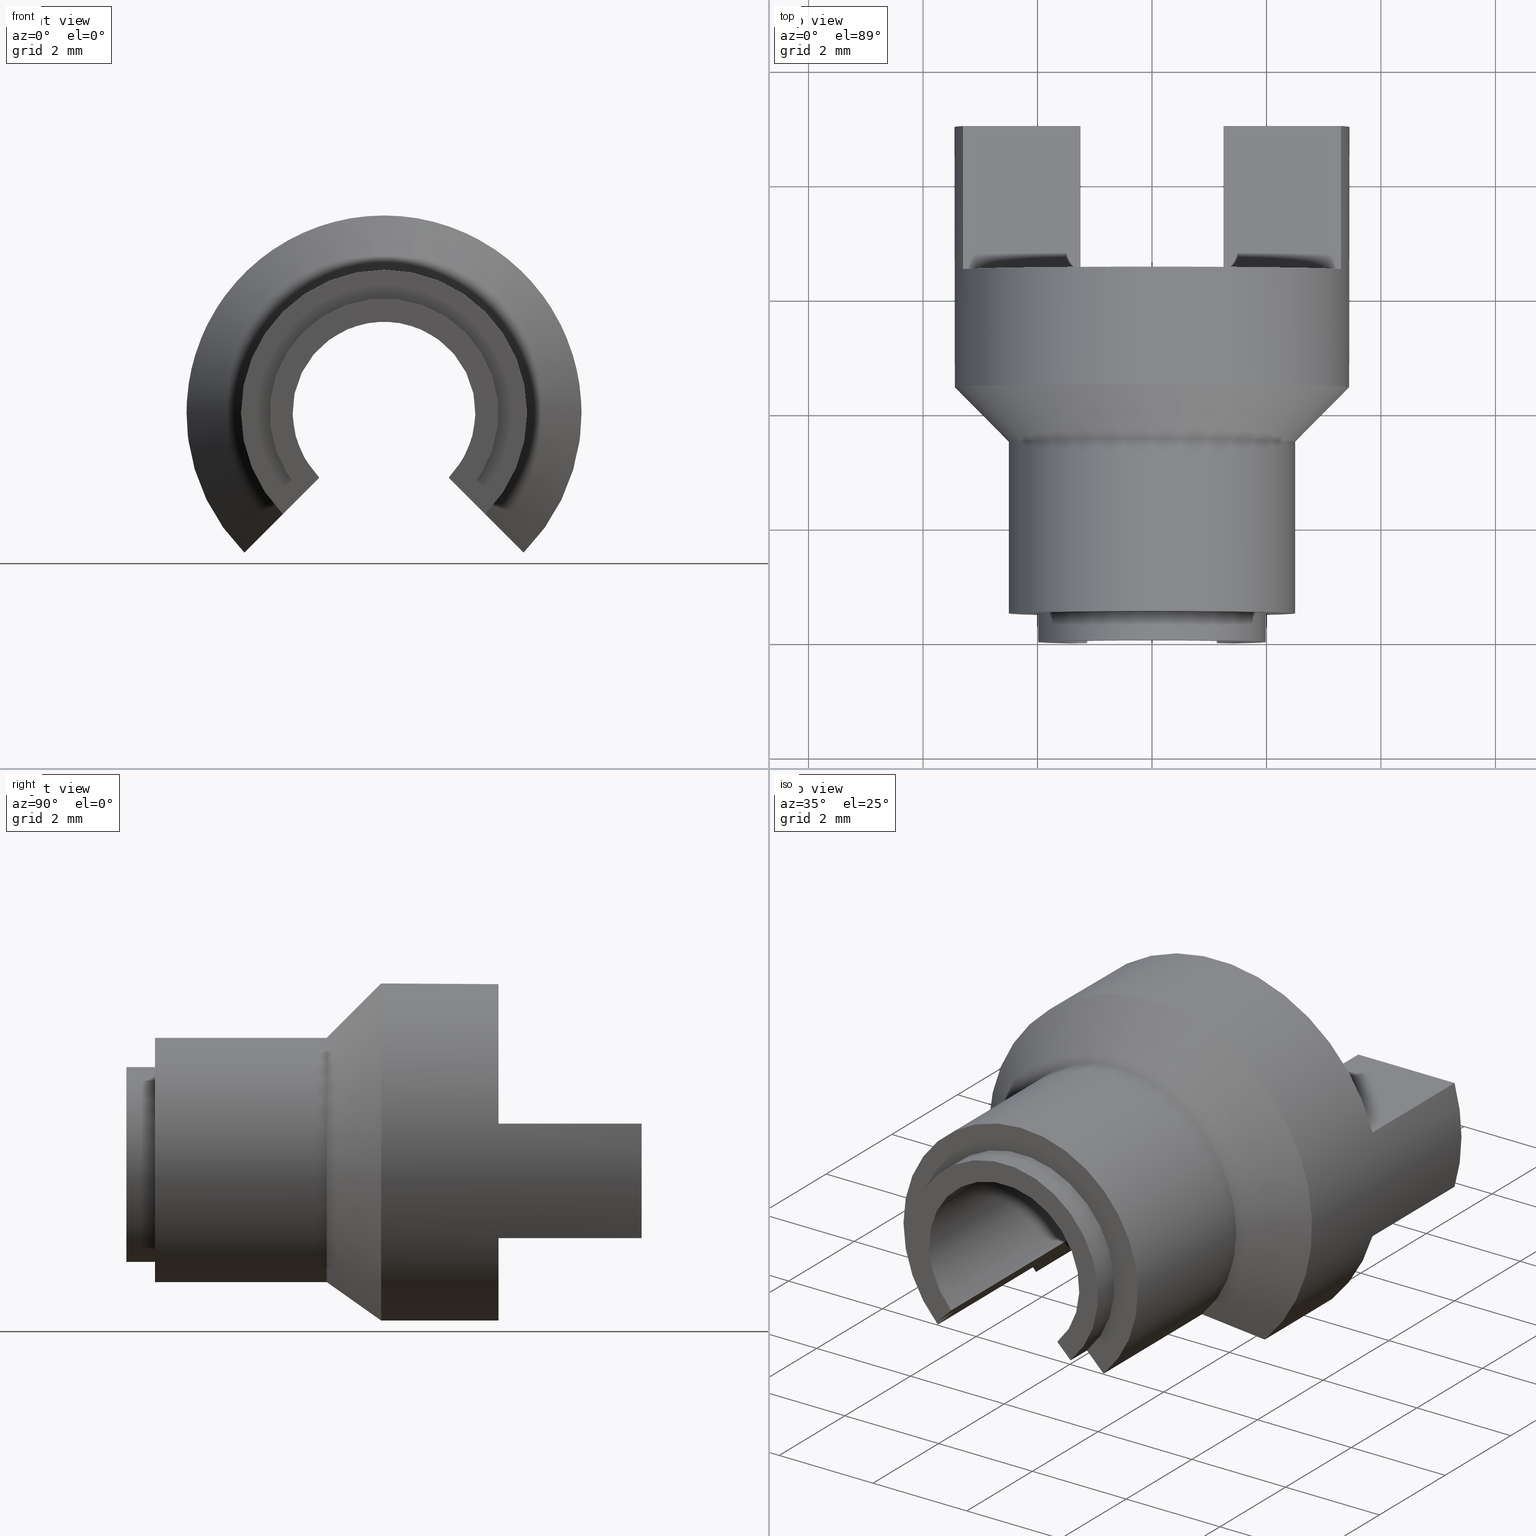
[diagram: canonical four-view strip — front | top / right | iso, engineering-drawing reading convention]
A machine part, canonical four-view strip (front | top / right | iso — engineering-drawing reading convention). The complete STEP part file that produces these views, byte-faithful:
ISO-10303-21;
HEADER;
FILE_DESCRIPTION( ( 'STEP AP214' ), '1' );
FILE_NAME( 'L:/05_�J��/30_���a���^�/�ʉ��x�Z���T/G_�݌v�Ǘ�/���}�ʊǗ�/Assy�}/HP�p/AFXS-STF01.0-M5.step', '2022-06-28T09:02:34', ( ' ' ), ( ' ' ), 'XStep 1.0', ' ', ' ' );
FILE_SCHEMA( ( 'automotive_design' ) );
ENDSEC;
DATA;
#1 = MECHANICAL_DESIGN_GEOMETRIC_PRESENTATION_REPRESENTATION( ' ', ( #10, #11, #12, #13, #14, #15, #16, #17, #18, #19, #20, #21, #22, #23, #24, #25, #26, #27 ), #6 );
#2 = PRODUCT_DEFINITION_CONTEXT( '', #28, 'design' );
#3 = APPLICATION_PROTOCOL_DEFINITION( 'INTERNATIONAL STANDARD', 'automotive_design', 1994, #28 );
#4 = PRODUCT_CATEGORY_RELATIONSHIP( 'NONE', 'NONE', #29, #30 );
#5 = SHAPE_DEFINITION_REPRESENTATION( #31, #32 );
#6 =  ( GEOMETRIC_REPRESENTATION_CONTEXT( 3 )GLOBAL_UNCERTAINTY_ASSIGNED_CONTEXT( ( #35 ) )GLOBAL_UNIT_ASSIGNED_CONTEXT( ( #37, #38, #39 ) )REPRESENTATION_CONTEXT( 'NONE', 'WORKSPACE' ) );
#10 = STYLED_ITEM( '', ( #41 ), #42 );
#11 = STYLED_ITEM( '', ( #43 ), #44 );
#12 = STYLED_ITEM( '', ( #45 ), #46 );
#13 = STYLED_ITEM( '', ( #47 ), #48 );
#14 = STYLED_ITEM( '', ( #49 ), #50 );
#15 = STYLED_ITEM( '', ( #51 ), #52 );
#16 = STYLED_ITEM( '', ( #53 ), #54 );
#17 = STYLED_ITEM( '', ( #55 ), #56 );
#18 = STYLED_ITEM( '', ( #57 ), #58 );
#19 = STYLED_ITEM( '', ( #59 ), #60 );
#20 = STYLED_ITEM( '', ( #61 ), #62 );
#21 = STYLED_ITEM( '', ( #63 ), #64 );
#22 = STYLED_ITEM( '', ( #65 ), #66 );
#23 = STYLED_ITEM( '', ( #67 ), #68 );
#24 = STYLED_ITEM( '', ( #69 ), #70 );
#25 = STYLED_ITEM( '', ( #71 ), #72 );
#26 = STYLED_ITEM( '', ( #73 ), #74 );
#27 = STYLED_ITEM( '', ( #75 ), #76 );
#28 = APPLICATION_CONTEXT( ' ' );
#29 = PRODUCT_CATEGORY( 'part', 'NONE' );
#30 = PRODUCT_RELATED_PRODUCT_CATEGORY( 'detail', ' ', ( #77 ) );
#31 = PRODUCT_DEFINITION_SHAPE( 'NONE', 'NONE', #78 );
#32 = ADVANCED_BREP_SHAPE_REPRESENTATION( '1', ( #79, #80 ), #6 );
#35 = UNCERTAINTY_MEASURE_WITH_UNIT( LENGTH_MEASURE( 0.00100000000000000 ), #37, '', '' );
#37 =  ( CONVERSION_BASED_UNIT( 'MILLIMETRE', #83 )LENGTH_UNIT(  )NAMED_UNIT( #86 ) );
#38 =  ( NAMED_UNIT( #88 )PLANE_ANGLE_UNIT(  )SI_UNIT( $, .RADIAN. ) );
#39 =  ( NAMED_UNIT( #88 )SOLID_ANGLE_UNIT(  )SI_UNIT( $, .STERADIAN. ) );
#41 = PRESENTATION_STYLE_ASSIGNMENT( ( #94 ) );
#42 = ADVANCED_FACE( '', ( #95 ), #96, .T. );
#43 = PRESENTATION_STYLE_ASSIGNMENT( ( #97 ) );
#44 = ADVANCED_FACE( '', ( #98 ), #99, .T. );
#45 = PRESENTATION_STYLE_ASSIGNMENT( ( #100 ) );
#46 = ADVANCED_FACE( '', ( #101 ), #102, .T. );
#47 = PRESENTATION_STYLE_ASSIGNMENT( ( #103 ) );
#48 = ADVANCED_FACE( '', ( #104 ), #105, .T. );
#49 = PRESENTATION_STYLE_ASSIGNMENT( ( #106 ) );
#50 = ADVANCED_FACE( '', ( #107 ), #108, .T. );
#51 = PRESENTATION_STYLE_ASSIGNMENT( ( #109 ) );
#52 = ADVANCED_FACE( '', ( #110 ), #111, .T. );
#53 = PRESENTATION_STYLE_ASSIGNMENT( ( #112 ) );
#54 = ADVANCED_FACE( '', ( #113 ), #114, .T. );
#55 = PRESENTATION_STYLE_ASSIGNMENT( ( #115 ) );
#56 = ADVANCED_FACE( '', ( #116 ), #117, .F. );
#57 = PRESENTATION_STYLE_ASSIGNMENT( ( #118 ) );
#58 = ADVANCED_FACE( '', ( #119 ), #120, .F. );
#59 = PRESENTATION_STYLE_ASSIGNMENT( ( #121 ) );
#60 = ADVANCED_FACE( '', ( #122 ), #123, .T. );
#61 = PRESENTATION_STYLE_ASSIGNMENT( ( #124 ) );
#62 = ADVANCED_FACE( '', ( #125 ), #126, .T. );
#63 = PRESENTATION_STYLE_ASSIGNMENT( ( #127 ) );
#64 = ADVANCED_FACE( '', ( #128 ), #129, .T. );
#65 = PRESENTATION_STYLE_ASSIGNMENT( ( #130 ) );
#66 = ADVANCED_FACE( '', ( #131 ), #132, .T. );
#67 = PRESENTATION_STYLE_ASSIGNMENT( ( #133 ) );
#68 = ADVANCED_FACE( '', ( #134 ), #135, .T. );
#69 = PRESENTATION_STYLE_ASSIGNMENT( ( #136 ) );
#70 = ADVANCED_FACE( '', ( #137 ), #138, .T. );
#71 = PRESENTATION_STYLE_ASSIGNMENT( ( #139 ) );
#72 = ADVANCED_FACE( '', ( #140 ), #141, .F. );
#73 = PRESENTATION_STYLE_ASSIGNMENT( ( #142 ) );
#74 = ADVANCED_FACE( '', ( #143 ), #144, .F. );
#75 = PRESENTATION_STYLE_ASSIGNMENT( ( #145 ) );
#76 = ADVANCED_FACE( '', ( #146 ), #147, .F. );
#77 = PRODUCT( '1', '1', 'PART-1-DESC', ( #148 ) );
#78 = PRODUCT_DEFINITION( 'NONE', 'NONE', #149, #2 );
#79 = MANIFOLD_SOLID_BREP( '1', #150 );
#80 = AXIS2_PLACEMENT_3D( '', #151, #152, #153 );
#83 = LENGTH_MEASURE_WITH_UNIT( LENGTH_MEASURE( 1.00000000000000 ), #154 );
#86 = DIMENSIONAL_EXPONENTS( 1.00000000000000, 0.000000000000000, 0.000000000000000, 0.000000000000000, 0.000000000000000, 0.000000000000000, 0.000000000000000 );
#88 = DIMENSIONAL_EXPONENTS( 0.000000000000000, 0.000000000000000, 0.000000000000000, 0.000000000000000, 0.000000000000000, 0.000000000000000, 0.000000000000000 );
#94 = SURFACE_STYLE_USAGE( .BOTH., #155 );
#95 = FACE_OUTER_BOUND( '', #156, .T. );
#96 = PLANE( '', #157 );
#97 = SURFACE_STYLE_USAGE( .BOTH., #158 );
#98 = FACE_OUTER_BOUND( '', #159, .T. );
#99 = PLANE( '', #160 );
#100 = SURFACE_STYLE_USAGE( .BOTH., #161 );
#101 = FACE_OUTER_BOUND( '', #162, .T. );
#102 = PLANE( '', #163 );
#103 = SURFACE_STYLE_USAGE( .BOTH., #164 );
#104 = FACE_OUTER_BOUND( '', #165, .T. );
#105 = CYLINDRICAL_SURFACE( '', #166, 2.50000000000000 );
#106 = SURFACE_STYLE_USAGE( .BOTH., #167 );
#107 = FACE_OUTER_BOUND( '', #168, .T. );
#108 = CYLINDRICAL_SURFACE( '', #169, 3.45000000000001 );
#109 = SURFACE_STYLE_USAGE( .BOTH., #170 );
#110 = FACE_OUTER_BOUND( '', #171, .T. );
#111 = PLANE( '', #172 );
#112 = SURFACE_STYLE_USAGE( .BOTH., #173 );
#113 = FACE_OUTER_BOUND( '', #174, .T. );
#114 = PLANE( '', #175 );
#115 = SURFACE_STYLE_USAGE( .BOTH., #176 );
#116 = FACE_OUTER_BOUND( '', #177, .T. );
#117 = PLANE( '', #178 );
#118 = SURFACE_STYLE_USAGE( .BOTH., #179 );
#119 = FACE_OUTER_BOUND( '', #180, .T. );
#120 = PLANE( '', #181 );
#121 = SURFACE_STYLE_USAGE( .BOTH., #182 );
#122 = FACE_OUTER_BOUND( '', #183, .T. );
#123 = CONICAL_SURFACE( '', #184, 3.45000000000001, 0.785398163397463 );
#124 = SURFACE_STYLE_USAGE( .BOTH., #185 );
#125 = FACE_OUTER_BOUND( '', #186, .T. );
#126 = CYLINDRICAL_SURFACE( '', #187, 2.00000000000000 );
#127 = SURFACE_STYLE_USAGE( .BOTH., #188 );
#128 = FACE_OUTER_BOUND( '', #189, .T. );
#129 = PLANE( '', #190 );
#130 = SURFACE_STYLE_USAGE( .BOTH., #191 );
#131 = FACE_OUTER_BOUND( '', #192, .T. );
#132 = PLANE( '', #193 );
#133 = SURFACE_STYLE_USAGE( .BOTH., #194 );
#134 = FACE_OUTER_BOUND( '', #195, .T. );
#135 = PLANE( '', #196 );
#136 = SURFACE_STYLE_USAGE( .BOTH., #197 );
#137 = FACE_OUTER_BOUND( '', #198, .T. );
#138 = PLANE( '', #199 );
#139 = SURFACE_STYLE_USAGE( .BOTH., #200 );
#140 = FACE_OUTER_BOUND( '', #201, .T. );
#141 = CYLINDRICAL_SURFACE( '', #202, 1.60000000000000 );
#142 = SURFACE_STYLE_USAGE( .BOTH., #203 );
#143 = FACE_OUTER_BOUND( '', #204, .T. );
#144 = PLANE( '', #205 );
#145 = SURFACE_STYLE_USAGE( .BOTH., #206 );
#146 = FACE_OUTER_BOUND( '', #207, .T. );
#147 = PLANE( '', #208 );
#148 = PRODUCT_CONTEXT( '', #28, 'mechanical' );
#149 = PRODUCT_DEFINITION_FORMATION_WITH_SPECIFIED_SOURCE( ' ', 'NONE', #77, .NOT_KNOWN. );
#150 = CLOSED_SHELL( '', ( #56, #42, #70, #50, #58, #72, #48, #74, #60, #62, #76, #44, #52, #64, #66, #46, #54, #68 ) );
#151 = CARTESIAN_POINT( '', ( 0.000000000000000, 0.000000000000000, 0.000000000000000 ) );
#152 = DIRECTION( '', ( 0.000000000000000, 0.000000000000000, 1.00000000000000 ) );
#153 = DIRECTION( '', ( 1.00000000000000, 0.000000000000000, 0.000000000000000 ) );
#154 =  ( NAMED_UNIT( #86 )LENGTH_UNIT(  )SI_UNIT( .MILLI., .METRE. ) );
#155 = SURFACE_SIDE_STYLE( '', ( #210 ) );
#156 = EDGE_LOOP( '', ( #211, #212, #213, #214 ) );
#157 = AXIS2_PLACEMENT_3D( '', #215, #216, #217 );
#158 = SURFACE_SIDE_STYLE( '', ( #218 ) );
#159 = EDGE_LOOP( '', ( #219, #220, #221, #222 ) );
#160 = AXIS2_PLACEMENT_3D( '', #223, #224, #225 );
#161 = SURFACE_SIDE_STYLE( '', ( #226 ) );
#162 = EDGE_LOOP( '', ( #227, #228, #229, #230 ) );
#163 = AXIS2_PLACEMENT_3D( '', #231, #232, #233 );
#164 = SURFACE_SIDE_STYLE( '', ( #234 ) );
#165 = EDGE_LOOP( '', ( #235, #236, #237, #238 ) );
#166 = AXIS2_PLACEMENT_3D( '', #239, #240, #241 );
#167 = SURFACE_SIDE_STYLE( '', ( #242 ) );
#168 = EDGE_LOOP( '', ( #243, #244, #245, #246, #247, #248, #249, #250, #251, #252, #253, #254 ) );
#169 = AXIS2_PLACEMENT_3D( '', #255, #256, #257 );
#170 = SURFACE_SIDE_STYLE( '', ( #258 ) );
#171 = EDGE_LOOP( '', ( #259, #260, #261, #262 ) );
#172 = AXIS2_PLACEMENT_3D( '', #263, #264, #265 );
#173 = SURFACE_SIDE_STYLE( '', ( #266 ) );
#174 = EDGE_LOOP( '', ( #267, #268, #269, #270, #271, #272, #273, #274 ) );
#175 = AXIS2_PLACEMENT_3D( '', #275, #276, #277 );
#176 = SURFACE_SIDE_STYLE( '', ( #278 ) );
#177 = EDGE_LOOP( '', ( #279, #280, #281, #282 ) );
#178 = AXIS2_PLACEMENT_3D( '', #283, #284, #285 );
#179 = SURFACE_SIDE_STYLE( '', ( #286 ) );
#180 = EDGE_LOOP( '', ( #287, #288, #289, #290 ) );
#181 = AXIS2_PLACEMENT_3D( '', #291, #292, #293 );
#182 = SURFACE_SIDE_STYLE( '', ( #294 ) );
#183 = EDGE_LOOP( '', ( #295, #296, #297, #298 ) );
#184 = AXIS2_PLACEMENT_3D( '', #299, #300, #301 );
#185 = SURFACE_SIDE_STYLE( '', ( #302 ) );
#186 = EDGE_LOOP( '', ( #303, #304, #305, #306 ) );
#187 = AXIS2_PLACEMENT_3D( '', #307, #308, #309 );
#188 = SURFACE_SIDE_STYLE( '', ( #310 ) );
#189 = EDGE_LOOP( '', ( #311, #312, #313, #314 ) );
#190 = AXIS2_PLACEMENT_3D( '', #315, #316, #317 );
#191 = SURFACE_SIDE_STYLE( '', ( #318 ) );
#192 = EDGE_LOOP( '', ( #319, #320, #321, #322 ) );
#193 = AXIS2_PLACEMENT_3D( '', #323, #324, #325 );
#194 = SURFACE_SIDE_STYLE( '', ( #326 ) );
#195 = EDGE_LOOP( '', ( #327, #328, #329, #330, #331, #332, #333, #334 ) );
#196 = AXIS2_PLACEMENT_3D( '', #335, #336, #337 );
#197 = SURFACE_SIDE_STYLE( '', ( #338 ) );
#198 = EDGE_LOOP( '', ( #339, #340, #341, #342 ) );
#199 = AXIS2_PLACEMENT_3D( '', #343, #344, #345 );
#200 = SURFACE_SIDE_STYLE( '', ( #346 ) );
#201 = EDGE_LOOP( '', ( #347, #348, #349, #350, #351, #352, #353, #354, #355, #356, #357, #358 ) );
#202 = AXIS2_PLACEMENT_3D( '', #359, #360, #361 );
#203 = SURFACE_SIDE_STYLE( '', ( #362 ) );
#204 = EDGE_LOOP( '', ( #363, #364, #365, #366 ) );
#205 = AXIS2_PLACEMENT_3D( '', #367, #368, #369 );
#206 = SURFACE_SIDE_STYLE( '', ( #370 ) );
#207 = EDGE_LOOP( '', ( #371, #372, #373, #374 ) );
#208 = AXIS2_PLACEMENT_3D( '', #375, #376, #377 );
#210 = SURFACE_STYLE_FILL_AREA( #378 );
#211 = ORIENTED_EDGE( '', *, *, #379, .T. );
#212 = ORIENTED_EDGE( '', *, *, #380, .T. );
#213 = ORIENTED_EDGE( '', *, *, #381, .T. );
#214 = ORIENTED_EDGE( '', *, *, #382, .T. );
#215 = CARTESIAN_POINT( '', ( -3.30189339621981, 19.7747881339025, 1.00000000000000 ) );
#216 = DIRECTION( '', ( 0.000000000000000, 0.000000000000000, 1.00000000000000 ) );
#217 = DIRECTION( '', ( -1.00000000000000, 0.000000000000000, 0.000000000000000 ) );
#218 = SURFACE_STYLE_FILL_AREA( #383 );
#219 = ORIENTED_EDGE( '', *, *, #384, .T. );
#220 = ORIENTED_EDGE( '', *, *, #385, .F. );
#221 = ORIENTED_EDGE( '', *, *, #386, .T. );
#222 = ORIENTED_EDGE( '', *, *, #387, .T. );
#223 = CARTESIAN_POINT( '', ( 0.000000000000000, 6.49999999999998, 0.000000000000000 ) );
#224 = DIRECTION( '', ( 0.000000000000000, 1.00000000000000, 0.000000000000000 ) );
#225 = DIRECTION( '', ( 0.000000000000000, -0.000000000000000, 1.00000000000000 ) );
#226 = SURFACE_STYLE_FILL_AREA( #388 );
#227 = ORIENTED_EDGE( '', *, *, #389, .T. );
#228 = ORIENTED_EDGE( '', *, *, #390, .T. );
#229 = ORIENTED_EDGE( '', *, *, #391, .T. );
#230 = ORIENTED_EDGE( '', *, *, #392, .F. );
#231 = CARTESIAN_POINT( '', ( -3.30189339621981, 19.7747881339025, 1.00000000000000 ) );
#232 = DIRECTION( '', ( 0.000000000000000, 0.000000000000000, 1.00000000000000 ) );
#233 = DIRECTION( '', ( -1.00000000000000, 0.000000000000000, 0.000000000000000 ) );
#234 = SURFACE_STYLE_FILL_AREA( #393 );
#235 = ORIENTED_EDGE( '', *, *, #394, .F. );
#236 = ORIENTED_EDGE( '', *, *, #395, .F. );
#237 = ORIENTED_EDGE( '', *, *, #396, .F. );
#238 = ORIENTED_EDGE( '', *, *, #397, .T. );
#239 = CARTESIAN_POINT( '', ( 0.000000000000000, 0.000000000000000, 0.000000000000000 ) );
#240 = DIRECTION( '', ( -0.000000000000000, 1.00000000000000, 0.000000000000000 ) );
#241 = DIRECTION( '', ( 0.000000000000000, 0.000000000000000, -1.00000000000000 ) );
#242 = SURFACE_STYLE_FILL_AREA( #398 );
#243 = ORIENTED_EDGE( '', *, *, #380, .F. );
#244 = ORIENTED_EDGE( '', *, *, #399, .T. );
#245 = ORIENTED_EDGE( '', *, *, #400, .T. );
#246 = ORIENTED_EDGE( '', *, *, #386, .F. );
#247 = ORIENTED_EDGE( '', *, *, #401, .T. );
#248 = ORIENTED_EDGE( '', *, *, #402, .F. );
#249 = ORIENTED_EDGE( '', *, *, #403, .F. );
#250 = ORIENTED_EDGE( '', *, *, #404, .F. );
#251 = ORIENTED_EDGE( '', *, *, #405, .F. );
#252 = ORIENTED_EDGE( '', *, *, #406, .T. );
#253 = ORIENTED_EDGE( '', *, *, #392, .T. );
#254 = ORIENTED_EDGE( '', *, *, #407, .T. );
#255 = CARTESIAN_POINT( '', ( 0.000000000000000, 0.000000000000000, 0.000000000000000 ) );
#256 = DIRECTION( '', ( -0.000000000000000, 1.00000000000000, 0.000000000000000 ) );
#257 = DIRECTION( '', ( 0.000000000000000, 0.000000000000000, -1.00000000000000 ) );
#258 = SURFACE_STYLE_FILL_AREA( #408 );
#259 = ORIENTED_EDGE( '', *, *, #409, .T. );
#260 = ORIENTED_EDGE( '', *, *, #410, .T. );
#261 = ORIENTED_EDGE( '', *, *, #387, .F. );
#262 = ORIENTED_EDGE( '', *, *, #400, .F. );
#263 = CARTESIAN_POINT( '', ( -3.30189339621981, 19.7747881339025, -1.00000000000000 ) );
#264 = DIRECTION( '', ( 0.000000000000000, 0.000000000000000, -1.00000000000000 ) );
#265 = DIRECTION( '', ( -1.00000000000000, 0.000000000000000, 0.000000000000000 ) );
#266 = SURFACE_STYLE_FILL_AREA( #411 );
#267 = ORIENTED_EDGE( '', *, *, #412, .T. );
#268 = ORIENTED_EDGE( '', *, *, #413, .T. );
#269 = ORIENTED_EDGE( '', *, *, #403, .T. );
#270 = ORIENTED_EDGE( '', *, *, #414, .T. );
#271 = ORIENTED_EDGE( '', *, *, #396, .T. );
#272 = ORIENTED_EDGE( '', *, *, #415, .T. );
#273 = ORIENTED_EDGE( '', *, *, #416, .T. );
#274 = ORIENTED_EDGE( '', *, *, #417, .T. );
#275 = CARTESIAN_POINT( '', ( -4.99600361081320E-013, 35.5495762678051, -4.88324658487471E-013 ) );
#276 = DIRECTION( '', ( -0.707106781186551, 0.000000000000000, -0.707106781186544 ) );
#277 = DIRECTION( '', ( -0.707106781186544, 0.000000000000000, 0.707106781186551 ) );
#278 = SURFACE_STYLE_FILL_AREA( #418 );
#279 = ORIENTED_EDGE( '', *, *, #389, .F. );
#280 = ORIENTED_EDGE( '', *, *, #406, .F. );
#281 = ORIENTED_EDGE( '', *, *, #419, .F. );
#282 = ORIENTED_EDGE( '', *, *, #420, .T. );
#283 = CARTESIAN_POINT( '', ( -1.13137084989900, 8.99999999999998, 0.000000000000000 ) );
#284 = DIRECTION( '', ( 0.000000000000000, -1.00000000000000, -0.000000000000000 ) );
#285 = DIRECTION( '', ( 0.000000000000000, 0.000000000000000, -1.00000000000000 ) );
#286 = SURFACE_STYLE_FILL_AREA( #421 );
#287 = ORIENTED_EDGE( '', *, *, #379, .F. );
#288 = ORIENTED_EDGE( '', *, *, #422, .T. );
#289 = ORIENTED_EDGE( '', *, *, #409, .F. );
#290 = ORIENTED_EDGE( '', *, *, #399, .F. );
#291 = CARTESIAN_POINT( '', ( -1.13137084989900, 8.99999999999998, 0.000000000000000 ) );
#292 = DIRECTION( '', ( 0.000000000000000, -1.00000000000000, -0.000000000000000 ) );
#293 = DIRECTION( '', ( 0.000000000000000, 0.000000000000000, -1.00000000000000 ) );
#294 = SURFACE_STYLE_FILL_AREA( #423 );
#295 = ORIENTED_EDGE( '', *, *, #424, .F. );
#296 = ORIENTED_EDGE( '', *, *, #397, .F. );
#297 = ORIENTED_EDGE( '', *, *, #414, .F. );
#298 = ORIENTED_EDGE( '', *, *, #402, .T. );
#299 = CARTESIAN_POINT( '', ( 0.000000000000000, 4.44999999999998, 0.000000000000000 ) );
#300 = DIRECTION( '', ( -0.000000000000000, 1.00000000000000, 0.000000000000000 ) );
#301 = DIRECTION( '', ( 0.000000000000000, -0.000000000000000, 1.00000000000000 ) );
#302 = SURFACE_STYLE_FILL_AREA( #425 );
#303 = ORIENTED_EDGE( '', *, *, #426, .F. );
#304 = ORIENTED_EDGE( '', *, *, #427, .F. );
#305 = ORIENTED_EDGE( '', *, *, #416, .F. );
#306 = ORIENTED_EDGE( '', *, *, #428, .T. );
#307 = CARTESIAN_POINT( '', ( 0.000000000000000, 0.000000000000000, 0.000000000000000 ) );
#308 = DIRECTION( '', ( -0.000000000000000, 1.00000000000000, 0.000000000000000 ) );
#309 = DIRECTION( '', ( 0.000000000000000, 0.000000000000000, -1.00000000000000 ) );
#310 = SURFACE_STYLE_FILL_AREA( #429 );
#311 = ORIENTED_EDGE( '', *, *, #430, .T. );
#312 = ORIENTED_EDGE( '', *, *, #431, .T. );
#313 = ORIENTED_EDGE( '', *, *, #404, .T. );
#314 = ORIENTED_EDGE( '', *, *, #413, .F. );
#315 = CARTESIAN_POINT( '', ( 0.000000000000000, 6.49999999999998, 0.000000000000000 ) );
#316 = DIRECTION( '', ( 0.000000000000000, 1.00000000000000, 0.000000000000000 ) );
#317 = DIRECTION( '', ( 0.000000000000000, -0.000000000000000, 1.00000000000000 ) );
#318 = SURFACE_STYLE_FILL_AREA( #432 );
#319 = ORIENTED_EDGE( '', *, *, #419, .T. );
#320 = ORIENTED_EDGE( '', *, *, #405, .T. );
#321 = ORIENTED_EDGE( '', *, *, #431, .F. );
#322 = ORIENTED_EDGE( '', *, *, #433, .T. );
#323 = CARTESIAN_POINT( '', ( -3.30189339621981, 19.7747881339025, -1.00000000000000 ) );
#324 = DIRECTION( '', ( 0.000000000000000, 0.000000000000000, -1.00000000000000 ) );
#325 = DIRECTION( '', ( -1.00000000000000, 0.000000000000000, 0.000000000000000 ) );
#326 = SURFACE_STYLE_FILL_AREA( #434 );
#327 = ORIENTED_EDGE( '', *, *, #401, .F. );
#328 = ORIENTED_EDGE( '', *, *, #385, .T. );
#329 = ORIENTED_EDGE( '', *, *, #435, .T. );
#330 = ORIENTED_EDGE( '', *, *, #436, .T. );
#331 = ORIENTED_EDGE( '', *, *, #426, .T. );
#332 = ORIENTED_EDGE( '', *, *, #437, .T. );
#333 = ORIENTED_EDGE( '', *, *, #394, .T. );
#334 = ORIENTED_EDGE( '', *, *, #424, .T. );
#335 = CARTESIAN_POINT( '', ( -2.43951839509359, 35.5495762678051, -2.43951839509360 ) );
#336 = DIRECTION( '', ( 0.707106781186551, 0.000000000000000, -0.707106781186544 ) );
#337 = DIRECTION( '', ( -0.707106781186544, 0.000000000000000, -0.707106781186551 ) );
#338 = SURFACE_STYLE_FILL_AREA( #438 );
#339 = ORIENTED_EDGE( '', *, *, #439, .T. );
#340 = ORIENTED_EDGE( '', *, *, #381, .F. );
#341 = ORIENTED_EDGE( '', *, *, #407, .F. );
#342 = ORIENTED_EDGE( '', *, *, #391, .F. );
#343 = CARTESIAN_POINT( '', ( 0.000000000000000, 6.49999999999998, 0.000000000000000 ) );
#344 = DIRECTION( '', ( 0.000000000000000, 1.00000000000000, 0.000000000000000 ) );
#345 = DIRECTION( '', ( 0.000000000000000, 0.000000000000000, -1.00000000000000 ) );
#346 = SURFACE_STYLE_FILL_AREA( #440 );
#347 = ORIENTED_EDGE( '', *, *, #390, .F. );
#348 = ORIENTED_EDGE( '', *, *, #420, .F. );
#349 = ORIENTED_EDGE( '', *, *, #433, .F. );
#350 = ORIENTED_EDGE( '', *, *, #430, .F. );
#351 = ORIENTED_EDGE( '', *, *, #412, .F. );
#352 = ORIENTED_EDGE( '', *, *, #441, .F. );
#353 = ORIENTED_EDGE( '', *, *, #435, .F. );
#354 = ORIENTED_EDGE( '', *, *, #384, .F. );
#355 = ORIENTED_EDGE( '', *, *, #410, .F. );
#356 = ORIENTED_EDGE( '', *, *, #422, .F. );
#357 = ORIENTED_EDGE( '', *, *, #382, .F. );
#358 = ORIENTED_EDGE( '', *, *, #439, .F. );
#359 = CARTESIAN_POINT( '', ( 0.000000000000000, -1.60000000001457, 0.000000000000000 ) );
#360 = DIRECTION( '', ( -0.000000000000000, -1.00000000000000, -0.000000000000000 ) );
#361 = DIRECTION( '', ( -1.00000000000000, 0.000000000000000, -6.12303176911189E-017 ) );
#362 = SURFACE_STYLE_FILL_AREA( #442 );
#363 = ORIENTED_EDGE( '', *, *, #437, .F. );
#364 = ORIENTED_EDGE( '', *, *, #428, .F. );
#365 = ORIENTED_EDGE( '', *, *, #415, .F. );
#366 = ORIENTED_EDGE( '', *, *, #395, .T. );
#367 = CARTESIAN_POINT( '', ( -2.50000000000000, 0.500000000000000, 0.000000000000000 ) );
#368 = DIRECTION( '', ( 0.000000000000000, 1.00000000000000, 0.000000000000000 ) );
#369 = DIRECTION( '', ( 0.000000000000000, -0.000000000000000, 1.00000000000000 ) );
#370 = SURFACE_STYLE_FILL_AREA( #443 );
#371 = ORIENTED_EDGE( '', *, *, #436, .F. );
#372 = ORIENTED_EDGE( '', *, *, #441, .T. );
#373 = ORIENTED_EDGE( '', *, *, #417, .F. );
#374 = ORIENTED_EDGE( '', *, *, #427, .T. );
#375 = CARTESIAN_POINT( '', ( -2.00000000000000, 0.000000000000000, 0.000000000000000 ) );
#376 = DIRECTION( '', ( 0.000000000000000, 1.00000000000000, 0.000000000000000 ) );
#377 = DIRECTION( '', ( 0.000000000000000, -0.000000000000000, 1.00000000000000 ) );
#378 = FILL_AREA_STYLE( '', ( #444 ) );
#379 = EDGE_CURVE( '', #445, #446, #447, .T. );
#380 = EDGE_CURVE( '', #446, #448, #449, .T. );
#381 = EDGE_CURVE( '', #448, #450, #451, .T. );
#382 = EDGE_CURVE( '', #450, #445, #452, .T. );
#383 = FILL_AREA_STYLE( '', ( #453 ) );
#384 = EDGE_CURVE( '', #454, #455, #456, .F. );
#385 = EDGE_CURVE( '', #457, #455, #458, .T. );
#386 = EDGE_CURVE( '', #457, #459, #460, .T. );
#387 = EDGE_CURVE( '', #459, #454, #461, .T. );
#388 = FILL_AREA_STYLE( '', ( #462 ) );
#389 = EDGE_CURVE( '', #463, #464, #465, .T. );
#390 = EDGE_CURVE( '', #464, #466, #467, .F. );
#391 = EDGE_CURVE( '', #466, #468, #469, .T. );
#392 = EDGE_CURVE( '', #463, #468, #470, .T. );
#393 = FILL_AREA_STYLE( '', ( #471 ) );
#394 = EDGE_CURVE( '', #472, #473, #474, .F. );
#395 = EDGE_CURVE( '', #475, #472, #476, .T. );
#396 = EDGE_CURVE( '', #477, #475, #478, .T. );
#397 = EDGE_CURVE( '', #477, #473, #479, .T. );
#398 = FILL_AREA_STYLE( '', ( #480 ) );
#399 = EDGE_CURVE( '', #446, #481, #482, .T. );
#400 = EDGE_CURVE( '', #481, #459, #483, .T. );
#401 = EDGE_CURVE( '', #457, #484, #485, .T. );
#402 = EDGE_CURVE( '', #486, #484, #487, .T. );
#403 = EDGE_CURVE( '', #488, #486, #489, .T. );
#404 = EDGE_CURVE( '', #490, #488, #491, .T. );
#405 = EDGE_CURVE( '', #492, #490, #493, .T. );
#406 = EDGE_CURVE( '', #492, #463, #494, .T. );
#407 = EDGE_CURVE( '', #468, #448, #495, .T. );
#408 = FILL_AREA_STYLE( '', ( #496 ) );
#409 = EDGE_CURVE( '', #481, #497, #498, .T. );
#410 = EDGE_CURVE( '', #497, #454, #499, .F. );
#411 = FILL_AREA_STYLE( '', ( #500 ) );
#412 = EDGE_CURVE( '', #501, #502, #503, .T. );
#413 = EDGE_CURVE( '', #502, #488, #504, .T. );
#414 = EDGE_CURVE( '', #486, #477, #505, .T. );
#415 = EDGE_CURVE( '', #475, #506, #507, .T. );
#416 = EDGE_CURVE( '', #506, #508, #509, .T. );
#417 = EDGE_CURVE( '', #508, #501, #510, .T. );
#418 = FILL_AREA_STYLE( '', ( #511 ) );
#419 = EDGE_CURVE( '', #512, #492, #513, .T. );
#420 = EDGE_CURVE( '', #512, #464, #514, .T. );
#421 = FILL_AREA_STYLE( '', ( #515 ) );
#422 = EDGE_CURVE( '', #445, #497, #516, .T. );
#423 = FILL_AREA_STYLE( '', ( #517 ) );
#424 = EDGE_CURVE( '', #473, #484, #518, .T. );
#425 = FILL_AREA_STYLE( '', ( #519 ) );
#426 = EDGE_CURVE( '', #520, #521, #522, .F. );
#427 = EDGE_CURVE( '', #508, #520, #523, .T. );
#428 = EDGE_CURVE( '', #506, #521, #524, .T. );
#429 = FILL_AREA_STYLE( '', ( #525 ) );
#430 = EDGE_CURVE( '', #502, #526, #527, .F. );
#431 = EDGE_CURVE( '', #526, #490, #528, .T. );
#432 = FILL_AREA_STYLE( '', ( #529 ) );
#433 = EDGE_CURVE( '', #526, #512, #530, .T. );
#434 = FILL_AREA_STYLE( '', ( #531 ) );
#435 = EDGE_CURVE( '', #455, #532, #533, .F. );
#436 = EDGE_CURVE( '', #532, #520, #534, .T. );
#437 = EDGE_CURVE( '', #521, #472, #535, .T. );
#438 = FILL_AREA_STYLE( '', ( #536 ) );
#439 = EDGE_CURVE( '', #466, #450, #537, .F. );
#440 = FILL_AREA_STYLE( '', ( #538 ) );
#441 = EDGE_CURVE( '', #532, #501, #539, .T. );
#442 = FILL_AREA_STYLE( '', ( #540 ) );
#443 = FILL_AREA_STYLE( '', ( #541 ) );
#444 = FILL_AREA_STYLE_COLOUR( '', #542 );
#445 = VERTEX_POINT( '', #543 );
#446 = VERTEX_POINT( '', #544 );
#447 = LINE( '', #545, #546 );
#448 = VERTEX_POINT( '', #547 );
#449 = LINE( '', #548, #549 );
#450 = VERTEX_POINT( '', #550 );
#451 = LINE( '', #551, #552 );
#452 = LINE( '', #553, #554 );
#453 = FILL_AREA_STYLE_COLOUR( '', #555 );
#454 = VERTEX_POINT( '', #556 );
#455 = VERTEX_POINT( '', #557 );
#456 = CIRCLE( '', #558, 1.60000000000000 );
#457 = VERTEX_POINT( '', #559 );
#458 = LINE( '', #560, #561 );
#459 = VERTEX_POINT( '', #562 );
#460 = CIRCLE( '', #563, 3.45000000000000 );
#461 = LINE( '', #564, #565 );
#462 = FILL_AREA_STYLE_COLOUR( '', #566 );
#463 = VERTEX_POINT( '', #567 );
#464 = VERTEX_POINT( '', #568 );
#465 = LINE( '', #569, #570 );
#466 = VERTEX_POINT( '', #571 );
#467 = LINE( '', #572, #573 );
#468 = VERTEX_POINT( '', #574 );
#469 = LINE( '', #575, #576 );
#470 = LINE( '', #577, #578 );
#471 = FILL_AREA_STYLE_COLOUR( '', #579 );
#472 = VERTEX_POINT( '', #580 );
#473 = VERTEX_POINT( '', #581 );
#474 = LINE( '', #582, #583 );
#475 = VERTEX_POINT( '', #584 );
#476 = CIRCLE( '', #585, 2.50000000000000 );
#477 = VERTEX_POINT( '', #586 );
#478 = LINE( '', #587, #588 );
#479 = CIRCLE( '', #589, 2.50000000000000 );
#480 = FILL_AREA_STYLE_COLOUR( '', #590 );
#481 = VERTEX_POINT( '', #591 );
#482 = CIRCLE( '', #592, 3.45000000000001 );
#483 = LINE( '', #593, #594 );
#484 = VERTEX_POINT( '', #595 );
#485 = LINE( '', #596, #597 );
#486 = VERTEX_POINT( '', #598 );
#487 = CIRCLE( '', #599, 3.45000000000001 );
#488 = VERTEX_POINT( '', #600 );
#489 = LINE( '', #601, #602 );
#490 = VERTEX_POINT( '', #603 );
#491 = CIRCLE( '', #604, 3.45000000000000 );
#492 = VERTEX_POINT( '', #605 );
#493 = LINE( '', #606, #607 );
#494 = CIRCLE( '', #608, 3.45000000000001 );
#495 = CIRCLE( '', #609, 3.45000000000000 );
#496 = FILL_AREA_STYLE_COLOUR( '', #610 );
#497 = VERTEX_POINT( '', #611 );
#498 = LINE( '', #612, #613 );
#499 = LINE( '', #614, #615 );
#500 = FILL_AREA_STYLE_COLOUR( '', #616 );
#501 = VERTEX_POINT( '', #617 );
#502 = VERTEX_POINT( '', #618 );
#503 = LINE( '', #619, #620 );
#504 = LINE( '', #621, #622 );
#505 = LINE( '', #623, #624 );
#506 = VERTEX_POINT( '', #625 );
#507 = LINE( '', #626, #627 );
#508 = VERTEX_POINT( '', #628 );
#509 = LINE( '', #629, #630 );
#510 = LINE( '', #631, #632 );
#511 = FILL_AREA_STYLE_COLOUR( '', #633 );
#512 = VERTEX_POINT( '', #634 );
#513 = LINE( '', #635, #636 );
#514 = CIRCLE( '', #637, 1.60000000000000 );
#515 = FILL_AREA_STYLE_COLOUR( '', #638 );
#516 = CIRCLE( '', #639, 1.60000000000000 );
#517 = FILL_AREA_STYLE_COLOUR( '', #640 );
#518 = LINE( '', #641, #642 );
#519 = FILL_AREA_STYLE_COLOUR( '', #643 );
#520 = VERTEX_POINT( '', #644 );
#521 = VERTEX_POINT( '', #645 );
#522 = LINE( '', #646, #647 );
#523 = CIRCLE( '', #648, 2.00000000000000 );
#524 = CIRCLE( '', #649, 2.00000000000000 );
#525 = FILL_AREA_STYLE_COLOUR( '', #650 );
#526 = VERTEX_POINT( '', #651 );
#527 = CIRCLE( '', #652, 1.60000000000000 );
#528 = LINE( '', #653, #654 );
#529 = FILL_AREA_STYLE_COLOUR( '', #655 );
#530 = LINE( '', #656, #657 );
#531 = FILL_AREA_STYLE_COLOUR( '', #658 );
#532 = VERTEX_POINT( '', #659 );
#533 = LINE( '', #660, #661 );
#534 = LINE( '', #662, #663 );
#535 = LINE( '', #664, #665 );
#536 = FILL_AREA_STYLE_COLOUR( '', #666 );
#537 = CIRCLE( '', #667, 1.60000000000000 );
#538 = FILL_AREA_STYLE_COLOUR( '', #668 );
#539 = CIRCLE( '', #669, 1.60000000000000 );
#540 = FILL_AREA_STYLE_COLOUR( '', #670 );
#541 = FILL_AREA_STYLE_COLOUR( '', #671 );
#542 = COLOUR_RGB( '', 0.752941176470588, 0.752941176470588, 0.752941176470588 );
#543 = CARTESIAN_POINT( '', ( -1.24899959967968, 8.99999999999998, 1.00000000000000 ) );
#544 = CARTESIAN_POINT( '', ( -3.30189339621981, 8.99999999999998, 1.00000000000000 ) );
#545 = CARTESIAN_POINT( '', ( -1.13137084989900, 8.99999999999998, 1.00000000000000 ) );
#546 = VECTOR( '', #672, 1000.00000000000 );
#547 = CARTESIAN_POINT( '', ( -3.30189339621981, 6.49999999999998, 1.00000000000000 ) );
#548 = CARTESIAN_POINT( '', ( -3.30189339621981, 19.7747881339025, 1.00000000000000 ) );
#549 = VECTOR( '', #673, 1000.00000000000 );
#550 = CARTESIAN_POINT( '', ( -1.24899959967968, 6.49999999999998, 1.00000000000000 ) );
#551 = CARTESIAN_POINT( '', ( -3.30189339621981, 6.49999999999998, 1.00000000000000 ) );
#552 = VECTOR( '', #674, 1000.00000000000 );
#553 = CARTESIAN_POINT( '', ( -1.24899959967968, -1.60000000001457, 1.00000000000000 ) );
#554 = VECTOR( '', #675, 1000.00000000000 );
#555 = COLOUR_RGB( '', 0.752941176470588, 0.752941176470588, 0.752941176470588 );
#556 = CARTESIAN_POINT( '', ( -1.24899959967968, 6.49999999999998, -1.00000000000000 ) );
#557 = CARTESIAN_POINT( '', ( -1.13137084989848, 6.49999999999998, -1.13137084989848 ) );
#558 = AXIS2_PLACEMENT_3D( '', #676, #677, #678 );
#559 = CARTESIAN_POINT( '', ( -2.43951839509358, 6.49999999999998, -2.43951839509360 ) );
#560 = CARTESIAN_POINT( '', ( -2.43951839509359, 6.49999999999998, -2.43951839509360 ) );
#561 = VECTOR( '', #679, 1000.00000000000 );
#562 = CARTESIAN_POINT( '', ( -3.30189339621981, 6.49999999999998, -1.00000000000000 ) );
#563 = AXIS2_PLACEMENT_3D( '', #680, #681, #682 );
#564 = CARTESIAN_POINT( '', ( -3.30189339621981, 6.49999999999998, -1.00000000000000 ) );
#565 = VECTOR( '', #683, 1000.00000000000 );
#566 = COLOUR_RGB( '', 0.752941176470588, 0.752941176470588, 0.752941176470588 );
#567 = CARTESIAN_POINT( '', ( 3.30189339621981, 8.99999999999998, 1.00000000000000 ) );
#568 = CARTESIAN_POINT( '', ( 1.24899959967968, 8.99999999999998, 1.00000000000000 ) );
#569 = CARTESIAN_POINT( '', ( -1.13137084989900, 8.99999999999998, 1.00000000000000 ) );
#570 = VECTOR( '', #684, 1000.00000000000 );
#571 = CARTESIAN_POINT( '', ( 1.24899959967968, 6.49999999999998, 1.00000000000000 ) );
#572 = CARTESIAN_POINT( '', ( 1.24899959967968, -1.60000000001457, 1.00000000000000 ) );
#573 = VECTOR( '', #685, 1000.00000000000 );
#574 = CARTESIAN_POINT( '', ( 3.30189339621981, 6.49999999999998, 1.00000000000000 ) );
#575 = CARTESIAN_POINT( '', ( -3.30189339621981, 6.49999999999998, 1.00000000000000 ) );
#576 = VECTOR( '', #686, 1000.00000000000 );
#577 = CARTESIAN_POINT( '', ( 3.30189339621981, 19.7747881339025, 1.00000000000000 ) );
#578 = VECTOR( '', #687, 1000.00000000000 );
#579 = COLOUR_RGB( '', 0.752941176470588, 0.752941176470588, 0.752941176470588 );
#580 = CARTESIAN_POINT( '', ( -1.76776695296637, 0.500000000000000, -1.76776695296637 ) );
#581 = CARTESIAN_POINT( '', ( -1.76776695296637, 3.50000000000000, -1.76776695296637 ) );
#582 = CARTESIAN_POINT( '', ( -1.76776695296637, 0.000000000000000, -1.76776695296637 ) );
#583 = VECTOR( '', #688, 1000.00000000000 );
#584 = CARTESIAN_POINT( '', ( 1.76776695296587, 0.500000000000000, -1.76776695296687 ) );
#585 = AXIS2_PLACEMENT_3D( '', #689, #690, #691 );
#586 = CARTESIAN_POINT( '', ( 1.76776695296587, 3.50000000000000, -1.76776695296687 ) );
#587 = CARTESIAN_POINT( '', ( 1.76776695296587, 0.000000000000000, -1.76776695296687 ) );
#588 = VECTOR( '', #692, 1000.00000000000 );
#589 = AXIS2_PLACEMENT_3D( '', #693, #694, #695 );
#590 = COLOUR_RGB( '', 0.752941176470588, 0.752941176470588, 0.752941176470588 );
#591 = CARTESIAN_POINT( '', ( -3.30189339621981, 8.99999999999998, -1.00000000000000 ) );
#592 = AXIS2_PLACEMENT_3D( '', #696, #697, #698 );
#593 = CARTESIAN_POINT( '', ( -3.30189339621981, 19.7747881339025, -1.00000000000000 ) );
#594 = VECTOR( '', #699, 1000.00000000000 );
#595 = CARTESIAN_POINT( '', ( -2.43951839509359, 4.44999999999999, -2.43951839509360 ) );
#596 = CARTESIAN_POINT( '', ( -2.43951839509359, 35.5495762678051, -2.43951839509360 ) );
#597 = VECTOR( '', #700, 1000.00000000000 );
#598 = CARTESIAN_POINT( '', ( 2.43951839509309, 4.44999999999999, -2.43951839509410 ) );
#599 = AXIS2_PLACEMENT_3D( '', #701, #702, #703 );
#600 = CARTESIAN_POINT( '', ( 2.43951839509309, 6.49999999999999, -2.43951839509410 ) );
#601 = CARTESIAN_POINT( '', ( 2.43951839509309, 35.5495762678051, -2.43951839509410 ) );
#602 = VECTOR( '', #704, 1000.00000000000 );
#603 = CARTESIAN_POINT( '', ( 3.30189339621981, 6.49999999999998, -1.00000000000000 ) );
#604 = AXIS2_PLACEMENT_3D( '', #705, #706, #707 );
#605 = CARTESIAN_POINT( '', ( 3.30189339621981, 8.99999999999998, -1.00000000000000 ) );
#606 = CARTESIAN_POINT( '', ( 3.30189339621981, 19.7747881339025, -1.00000000000000 ) );
#607 = VECTOR( '', #708, 1000.00000000000 );
#608 = AXIS2_PLACEMENT_3D( '', #709, #710, #711 );
#609 = AXIS2_PLACEMENT_3D( '', #712, #713, #714 );
#610 = COLOUR_RGB( '', 0.752941176470588, 0.752941176470588, 0.752941176470588 );
#611 = CARTESIAN_POINT( '', ( -1.24899959967968, 8.99999999999998, -1.00000000000000 ) );
#612 = CARTESIAN_POINT( '', ( -1.13137084989900, 8.99999999999998, -1.00000000000000 ) );
#613 = VECTOR( '', #715, 1000.00000000000 );
#614 = CARTESIAN_POINT( '', ( -1.24899959967968, -1.60000000001457, -1.00000000000000 ) );
#615 = VECTOR( '', #716, 1000.00000000000 );
#616 = COLOUR_RGB( '', 0.752941176470588, 0.752941176470588, 0.752941176470588 );
#617 = CARTESIAN_POINT( '', ( 1.13137084989798, 0.000000000000000, -1.13137084989898 ) );
#618 = CARTESIAN_POINT( '', ( 1.13137084989798, 6.49999999999998, -1.13137084989898 ) );
#619 = CARTESIAN_POINT( '', ( 1.13137084989798, -1.60000000001457, -1.13137084989898 ) );
#620 = VECTOR( '', #717, 1000.00000000000 );
#621 = CARTESIAN_POINT( '', ( -4.99600361081320E-013, 6.49999999999998, -4.88324658487471E-013 ) );
#622 = VECTOR( '', #718, 1000.00000000000 );
#623 = CARTESIAN_POINT( '', ( -4.93962509784398E-013, 1.00000000000007, -4.93962509784393E-013 ) );
#624 = VECTOR( '', #719, 1000.00000000000 );
#625 = CARTESIAN_POINT( '', ( 1.41421356237259, 0.500000000000000, -1.41421356237360 ) );
#626 = CARTESIAN_POINT( '', ( -1.25000000000048, 0.500000000000000, 1.24999999999951 ) );
#627 = VECTOR( '', #720, 1000.00000000000 );
#628 = CARTESIAN_POINT( '', ( 1.41421356237260, 0.000000000000000, -1.41421356237360 ) );
#629 = CARTESIAN_POINT( '', ( 1.41421356237259, 0.000000000000000, -1.41421356237360 ) );
#630 = VECTOR( '', #721, 1000.00000000000 );
#631 = CARTESIAN_POINT( '', ( -1.00000000000048, 0.000000000000000, 0.999999999999507 ) );
#632 = VECTOR( '', #722, 1000.00000000000 );
#633 = COLOUR_RGB( '', 0.752941176470588, 0.752941176470588, 0.752941176470588 );
#634 = CARTESIAN_POINT( '', ( 1.24899959967968, 8.99999999999998, -1.00000000000000 ) );
#635 = CARTESIAN_POINT( '', ( -1.13137084989900, 8.99999999999998, -1.00000000000000 ) );
#636 = VECTOR( '', #723, 1000.00000000000 );
#637 = AXIS2_PLACEMENT_3D( '', #724, #725, #726 );
#638 = COLOUR_RGB( '', 0.752941176470588, 0.752941176470588, 0.752941176470588 );
#639 = AXIS2_PLACEMENT_3D( '', #727, #728, #729 );
#640 = COLOUR_RGB( '', 0.752941176470588, 0.752941176470588, 0.752941176470588 );
#641 = CARTESIAN_POINT( '', ( -6.13317366673353E-015, 1.00000000000007, 6.13317366673346E-015 ) );
#642 = VECTOR( '', #730, 1000.00000000000 );
#643 = COLOUR_RGB( '', 0.752941176470588, 0.752941176470588, 0.752941176470588 );
#644 = CARTESIAN_POINT( '', ( -1.41421356237309, 0.000000000000000, -1.41421356237310 ) );
#645 = CARTESIAN_POINT( '', ( -1.41421356237309, 0.500000000000000, -1.41421356237310 ) );
#646 = CARTESIAN_POINT( '', ( -1.41421356237309, 0.000000000000000, -1.41421356237310 ) );
#647 = VECTOR( '', #731, 1000.00000000000 );
#648 = AXIS2_PLACEMENT_3D( '', #732, #733, #734 );
#649 = AXIS2_PLACEMENT_3D( '', #735, #736, #737 );
#650 = COLOUR_RGB( '', 0.752941176470588, 0.752941176470588, 0.752941176470588 );
#651 = CARTESIAN_POINT( '', ( 1.24899959967968, 6.49999999999998, -1.00000000000000 ) );
#652 = AXIS2_PLACEMENT_3D( '', #738, #739, #740 );
#653 = CARTESIAN_POINT( '', ( -3.30189339621981, 6.49999999999998, -1.00000000000000 ) );
#654 = VECTOR( '', #741, 1000.00000000000 );
#655 = COLOUR_RGB( '', 0.752941176470588, 0.752941176470588, 0.752941176470588 );
#656 = CARTESIAN_POINT( '', ( 1.24899959967968, -1.60000000001457, -1.00000000000000 ) );
#657 = VECTOR( '', #742, 1000.00000000000 );
#658 = COLOUR_RGB( '', 0.752941176470588, 0.752941176470588, 0.752941176470588 );
#659 = CARTESIAN_POINT( '', ( -1.13137084989848, 0.000000000000000, -1.13137084989848 ) );
#660 = CARTESIAN_POINT( '', ( -1.13137084989848, -1.60000000001457, -1.13137084989848 ) );
#661 = VECTOR( '', #743, 1000.00000000000 );
#662 = CARTESIAN_POINT( '', ( -0.999999999999996, 0.000000000000000, -0.999999999999995 ) );
#663 = VECTOR( '', #744, 1000.00000000000 );
#664 = CARTESIAN_POINT( '', ( -1.24999999999999, 0.500000000000000, -1.25000000000000 ) );
#665 = VECTOR( '', #745, 1000.00000000000 );
#666 = COLOUR_RGB( '', 0.752941176470588, 0.752941176470588, 0.752941176470588 );
#667 = AXIS2_PLACEMENT_3D( '', #746, #747, #748 );
#668 = COLOUR_RGB( '', 0.752941176470588, 0.752941176470588, 0.752941176470588 );
#669 = AXIS2_PLACEMENT_3D( '', #749, #750, #751 );
#670 = COLOUR_RGB( '', 0.752941176470588, 0.752941176470588, 0.752941176470588 );
#671 = COLOUR_RGB( '', 0.752941176470588, 0.752941176470588, 0.752941176470588 );
#672 = DIRECTION( '', ( -1.00000000000000, 0.000000000000000, 0.000000000000000 ) );
#673 = DIRECTION( '', ( -0.000000000000000, -1.00000000000000, 0.000000000000000 ) );
#674 = DIRECTION( '', ( 1.00000000000000, 0.000000000000000, 0.000000000000000 ) );
#675 = DIRECTION( '', ( 0.000000000000000, 1.00000000000000, 0.000000000000000 ) );
#676 = CARTESIAN_POINT( '', ( 0.000000000000000, 6.49999999999998, 0.000000000000000 ) );
#677 = DIRECTION( '', ( 0.000000000000000, 1.00000000000000, 0.000000000000000 ) );
#678 = DIRECTION( '', ( 0.000000000000000, -0.000000000000000, 1.00000000000000 ) );
#679 = DIRECTION( '', ( 0.707106781186544, -0.000000000000000, 0.707106781186551 ) );
#680 = CARTESIAN_POINT( '', ( 0.000000000000000, 6.49999999999998, 0.000000000000000 ) );
#681 = DIRECTION( '', ( 0.000000000000000, 1.00000000000000, 0.000000000000000 ) );
#682 = DIRECTION( '', ( -0.707106781186545, 0.000000000000000, -0.707106781186549 ) );
#683 = DIRECTION( '', ( 1.00000000000000, 0.000000000000000, 0.000000000000000 ) );
#684 = DIRECTION( '', ( -1.00000000000000, 0.000000000000000, 0.000000000000000 ) );
#685 = DIRECTION( '', ( 0.000000000000000, 1.00000000000000, 0.000000000000000 ) );
#686 = DIRECTION( '', ( 1.00000000000000, 0.000000000000000, 0.000000000000000 ) );
#687 = DIRECTION( '', ( -0.000000000000000, -1.00000000000000, 0.000000000000000 ) );
#688 = DIRECTION( '', ( -0.000000000000000, -1.00000000000000, -0.000000000000000 ) );
#689 = CARTESIAN_POINT( '', ( 0.000000000000000, 0.500000000000000, 0.000000000000000 ) );
#690 = DIRECTION( '', ( 0.000000000000000, -1.00000000000000, -0.000000000000000 ) );
#691 = DIRECTION( '', ( 0.000000000000000, 0.000000000000000, -1.00000000000000 ) );
#692 = DIRECTION( '', ( -0.000000000000000, -1.00000000000000, -0.000000000000000 ) );
#693 = CARTESIAN_POINT( '', ( 0.000000000000000, 3.50000000000000, 0.000000000000000 ) );
#694 = DIRECTION( '', ( 0.000000000000000, -1.00000000000000, -0.000000000000000 ) );
#695 = DIRECTION( '', ( 0.000000000000000, 0.000000000000000, -1.00000000000000 ) );
#696 = CARTESIAN_POINT( '', ( 0.000000000000000, 8.99999999999998, 0.000000000000000 ) );
#697 = DIRECTION( '', ( 0.000000000000000, -1.00000000000000, -0.000000000000000 ) );
#698 = DIRECTION( '', ( 0.000000000000000, 0.000000000000000, -1.00000000000000 ) );
#699 = DIRECTION( '', ( -0.000000000000000, -1.00000000000000, -0.000000000000000 ) );
#700 = DIRECTION( '', ( 0.000000000000000, -1.00000000000000, -0.000000000000000 ) );
#701 = CARTESIAN_POINT( '', ( 0.000000000000000, 4.44999999999998, 0.000000000000000 ) );
#702 = DIRECTION( '', ( 0.000000000000000, -1.00000000000000, -0.000000000000000 ) );
#703 = DIRECTION( '', ( 0.000000000000000, 0.000000000000000, -1.00000000000000 ) );
#704 = DIRECTION( '', ( 0.000000000000000, -1.00000000000000, -0.000000000000000 ) );
#705 = CARTESIAN_POINT( '', ( 0.000000000000000, 6.49999999999998, 0.000000000000000 ) );
#706 = DIRECTION( '', ( 0.000000000000000, 1.00000000000000, 0.000000000000000 ) );
#707 = DIRECTION( '', ( -0.707106781186545, 0.000000000000000, -0.707106781186549 ) );
#708 = DIRECTION( '', ( -0.000000000000000, -1.00000000000000, -0.000000000000000 ) );
#709 = CARTESIAN_POINT( '', ( 0.000000000000000, 8.99999999999998, 0.000000000000000 ) );
#710 = DIRECTION( '', ( 0.000000000000000, -1.00000000000000, -0.000000000000000 ) );
#711 = DIRECTION( '', ( 0.000000000000000, 0.000000000000000, -1.00000000000000 ) );
#712 = CARTESIAN_POINT( '', ( 0.000000000000000, 6.49999999999998, 0.000000000000000 ) );
#713 = DIRECTION( '', ( -0.000000000000000, -1.00000000000000, 0.000000000000000 ) );
#714 = DIRECTION( '', ( -0.707106781186545, 0.000000000000000, 0.707106781186549 ) );
#715 = DIRECTION( '', ( 1.00000000000000, 0.000000000000000, 0.000000000000000 ) );
#716 = DIRECTION( '', ( 0.000000000000000, 1.00000000000000, 0.000000000000000 ) );
#717 = DIRECTION( '', ( 0.000000000000000, 1.00000000000000, 0.000000000000000 ) );
#718 = DIRECTION( '', ( 0.707106781186544, 0.000000000000000, -0.707106781186551 ) );
#719 = DIRECTION( '', ( -0.500000000000005, -0.707106781186537, 0.500000000000010 ) );
#720 = DIRECTION( '', ( -0.707106781186544, 0.000000000000000, 0.707106781186551 ) );
#721 = DIRECTION( '', ( -0.000000000000000, -1.00000000000000, -0.000000000000000 ) );
#722 = DIRECTION( '', ( -0.707106781186544, 0.000000000000000, 0.707106781186551 ) );
#723 = DIRECTION( '', ( 1.00000000000000, 0.000000000000000, 0.000000000000000 ) );
#724 = CARTESIAN_POINT( '', ( 0.000000000000000, 8.99999999999998, 0.000000000000000 ) );
#725 = DIRECTION( '', ( 0.000000000000000, -1.00000000000000, -0.000000000000000 ) );
#726 = DIRECTION( '', ( -1.00000000000000, 0.000000000000000, -6.12303176911189E-017 ) );
#727 = CARTESIAN_POINT( '', ( 0.000000000000000, 8.99999999999998, 0.000000000000000 ) );
#728 = DIRECTION( '', ( 0.000000000000000, -1.00000000000000, -0.000000000000000 ) );
#729 = DIRECTION( '', ( -1.00000000000000, 0.000000000000000, -6.12303176911189E-017 ) );
#730 = DIRECTION( '', ( -0.500000000000005, 0.707106781186537, -0.500000000000010 ) );
#731 = DIRECTION( '', ( -0.000000000000000, -1.00000000000000, -0.000000000000000 ) );
#732 = CARTESIAN_POINT( '', ( 0.000000000000000, 0.000000000000000, 0.000000000000000 ) );
#733 = DIRECTION( '', ( 0.000000000000000, -1.00000000000000, -0.000000000000000 ) );
#734 = DIRECTION( '', ( 0.000000000000000, 0.000000000000000, -1.00000000000000 ) );
#735 = CARTESIAN_POINT( '', ( 0.000000000000000, 0.500000000000000, 0.000000000000000 ) );
#736 = DIRECTION( '', ( 0.000000000000000, -1.00000000000000, -0.000000000000000 ) );
#737 = DIRECTION( '', ( 0.000000000000000, 0.000000000000000, -1.00000000000000 ) );
#738 = CARTESIAN_POINT( '', ( 0.000000000000000, 6.49999999999998, 0.000000000000000 ) );
#739 = DIRECTION( '', ( 0.000000000000000, 1.00000000000000, 0.000000000000000 ) );
#740 = DIRECTION( '', ( 0.000000000000000, -0.000000000000000, 1.00000000000000 ) );
#741 = DIRECTION( '', ( 1.00000000000000, 0.000000000000000, 0.000000000000000 ) );
#742 = DIRECTION( '', ( 0.000000000000000, 1.00000000000000, 0.000000000000000 ) );
#743 = DIRECTION( '', ( 0.000000000000000, 1.00000000000000, 0.000000000000000 ) );
#744 = DIRECTION( '', ( -0.707106781186544, 0.000000000000000, -0.707106781186551 ) );
#745 = DIRECTION( '', ( -0.707106781186544, 0.000000000000000, -0.707106781186551 ) );
#746 = CARTESIAN_POINT( '', ( 0.000000000000000, 6.49999999999998, 0.000000000000000 ) );
#747 = DIRECTION( '', ( 0.000000000000000, 1.00000000000000, 0.000000000000000 ) );
#748 = DIRECTION( '', ( 0.000000000000000, -0.000000000000000, 1.00000000000000 ) );
#749 = CARTESIAN_POINT( '', ( 0.000000000000000, 0.000000000000000, 0.000000000000000 ) );
#750 = DIRECTION( '', ( 0.000000000000000, 1.00000000000000, 0.000000000000000 ) );
#751 = DIRECTION( '', ( 0.000000000000000, -0.000000000000000, 1.00000000000000 ) );
ENDSEC;
END-ISO-10303-21;
